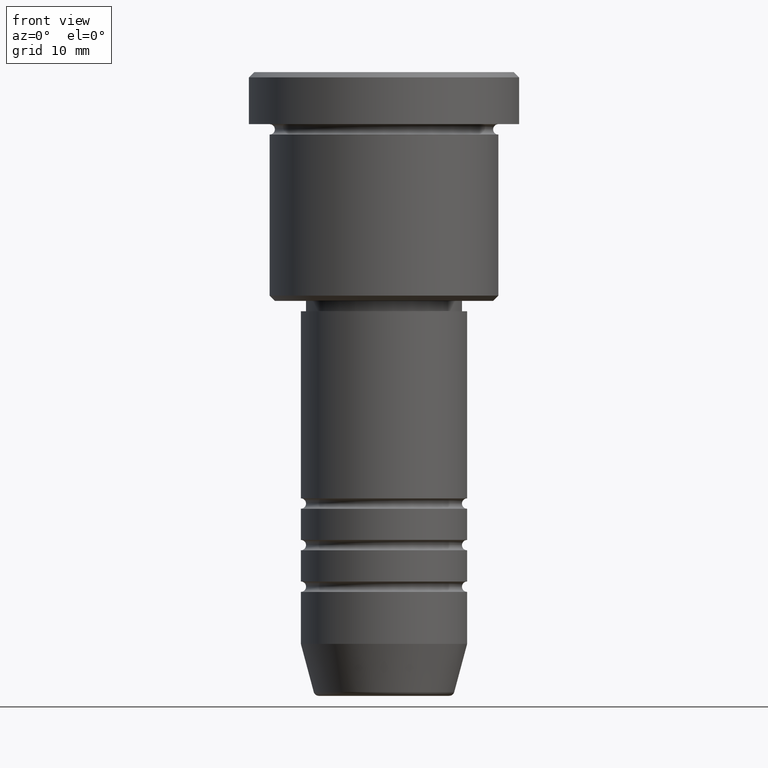
[diagram: clean part render]
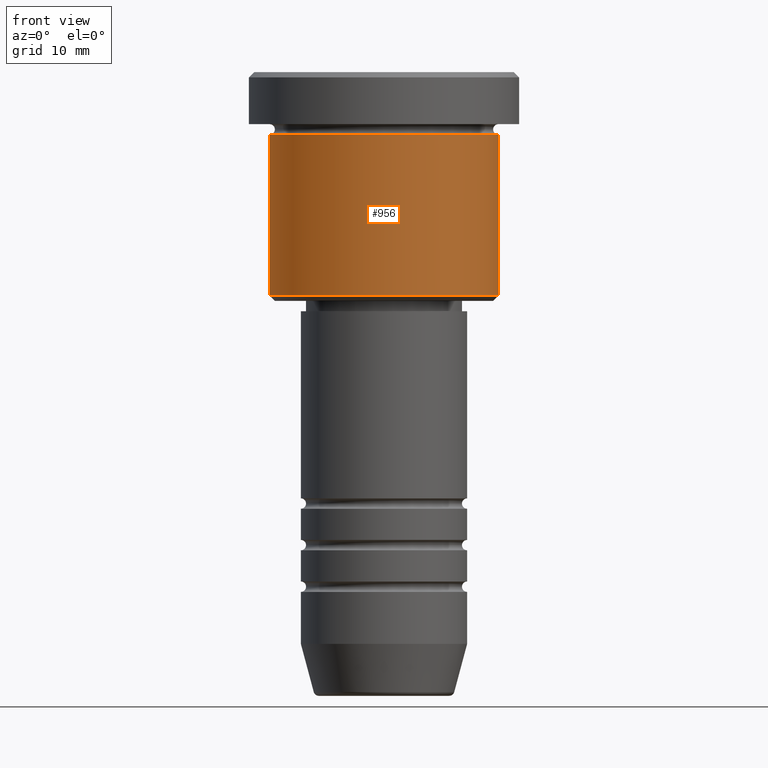
[diagram: same view with one face highlighted and labeled with its STEP entity id]
A machine part, front view. The second image highlights one B-rep face of the part: STEP entity #956.
In plain terms, the highlighted cylindrical surface (partial cylindrical patch) has radius 11 mm, axis along (-0, -0, 1).
Its self-contained STEP definition (entity closure, byte-faithful):
#14 = DIRECTION ( 'NONE',  ( -0.000000000000000000, -0.000000000000000000, 1.000000000000000000 ) ) ;
#40 = EDGE_LOOP ( 'NONE', ( #1086, #206, #1038, #624 ) ) ;
#46 = CARTESIAN_POINT ( 'NONE',  ( 0.000000000000000000, 0.000000000000000000, -21.50000000000000000 ) ) ;
#88 = VERTEX_POINT ( 'NONE', #588 ) ;
#132 = CARTESIAN_POINT ( 'NONE',  ( 11.00000000000000000, 0.000000000000000000, -5.999999999999999112 ) ) ;
#199 = CIRCLE ( 'NONE', #865, 11.00000000000000000 ) ;
#206 = ORIENTED_EDGE ( 'NONE', *, *, #976, .T. ) ;
#234 = LINE ( 'NONE', #423, #965 ) ;
#300 = DIRECTION ( 'NONE',  ( -0.000000000000000000, -0.000000000000000000, 1.000000000000000000 ) ) ;
#324 = VECTOR ( 'NONE', #14, 1000.000000000000000 ) ;
#423 = CARTESIAN_POINT ( 'NONE',  ( -11.00000000000000000, 1.347111479062088405E-15, 0.000000000000000000 ) ) ;
#471 = FACE_OUTER_BOUND ( 'NONE', #40, .T. ) ;
#480 = CARTESIAN_POINT ( 'NONE',  ( 11.00000000000000000, 0.000000000000000000, 0.000000000000000000 ) ) ;
#484 = DIRECTION ( 'NONE',  ( -0.000000000000000000, -0.000000000000000000, 1.000000000000000000 ) ) ;
#501 = DIRECTION ( 'NONE',  ( -0.000000000000000000, -0.000000000000000000, 1.000000000000000000 ) ) ;
#514 = AXIS2_PLACEMENT_3D ( 'NONE', #46, #484, #951 ) ;
#560 = VERTEX_POINT ( 'NONE', #866 ) ;
#580 = EDGE_CURVE ( 'NONE', #996, #960, #199, .T. ) ;
#588 = CARTESIAN_POINT ( 'NONE',  ( 11.00000000000000000, 0.000000000000000000, -21.50000000000000000 ) ) ;
#624 = ORIENTED_EDGE ( 'NONE', *, *, #580, .F. ) ;
#647 = LINE ( 'NONE', #480, #324 ) ;
#665 = DIRECTION ( 'NONE',  ( 1.000000000000000000, 0.000000000000000000, 0.000000000000000000 ) ) ;
#669 = DIRECTION ( 'NONE',  ( -0.000000000000000000, -0.000000000000000000, 1.000000000000000000 ) ) ;
#808 = CIRCLE ( 'NONE', #514, 11.00000000000000000 ) ;
#845 = CYLINDRICAL_SURFACE ( 'NONE', #882, 11.00000000000000000 ) ;
#856 = EDGE_CURVE ( 'NONE', #88, #960, #647, .T. ) ;
#865 = AXIS2_PLACEMENT_3D ( 'NONE', #878, #501, #1063 ) ;
#866 = CARTESIAN_POINT ( 'NONE',  ( -11.00000000000000000, 1.347111479062088405E-15, -21.50000000000000000 ) ) ;
#878 = CARTESIAN_POINT ( 'NONE',  ( 0.000000000000000000, 0.000000000000000000, -5.999999999999999112 ) ) ;
#882 = AXIS2_PLACEMENT_3D ( 'NONE', #941, #300, #665 ) ;
#941 = CARTESIAN_POINT ( 'NONE',  ( 0.000000000000000000, 0.000000000000000000, 0.000000000000000000 ) ) ;
#951 = DIRECTION ( 'NONE',  ( -1.000000000000000000, 0.000000000000000000, 0.000000000000000000 ) ) ;
#956 = ADVANCED_FACE ( 'NONE', ( #471 ), #845, .T. ) ;
#960 = VERTEX_POINT ( 'NONE', #132 ) ;
#965 = VECTOR ( 'NONE', #669, 1000.000000000000000 ) ;
#976 = EDGE_CURVE ( 'NONE', #560, #88, #808, .T. ) ;
#996 = VERTEX_POINT ( 'NONE', #1160 ) ;
#1038 = ORIENTED_EDGE ( 'NONE', *, *, #856, .T. ) ;
#1063 = DIRECTION ( 'NONE',  ( 1.000000000000000000, 0.000000000000000000, 0.000000000000000000 ) ) ;
#1086 = ORIENTED_EDGE ( 'NONE', *, *, #1163, .F. ) ;
#1160 = CARTESIAN_POINT ( 'NONE',  ( -11.00000000000000000, 1.347111479062088405E-15, -5.999999999999999112 ) ) ;
#1163 = EDGE_CURVE ( 'NONE', #560, #996, #234, .T. ) ;